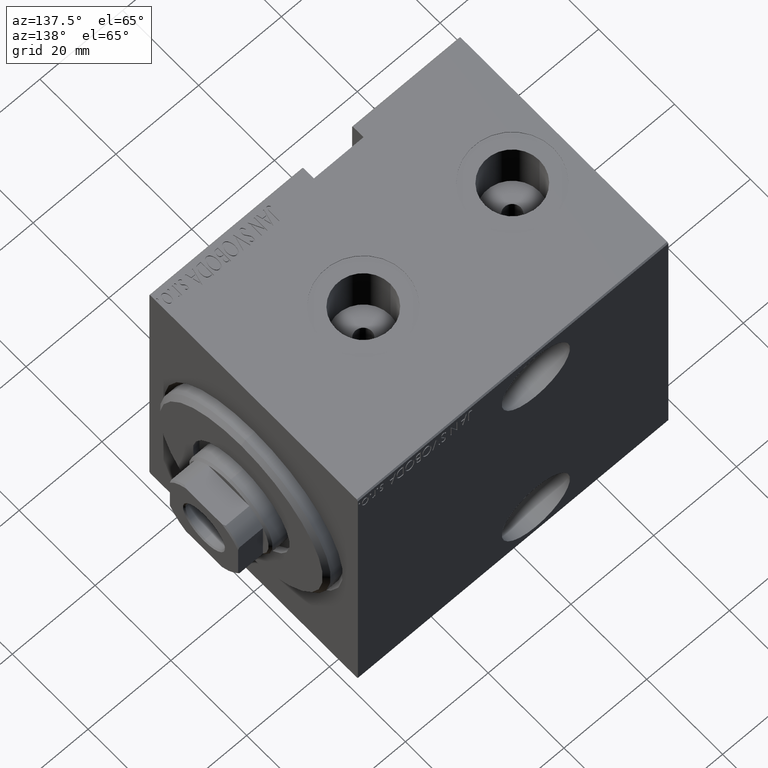
[diagram: clean part render]
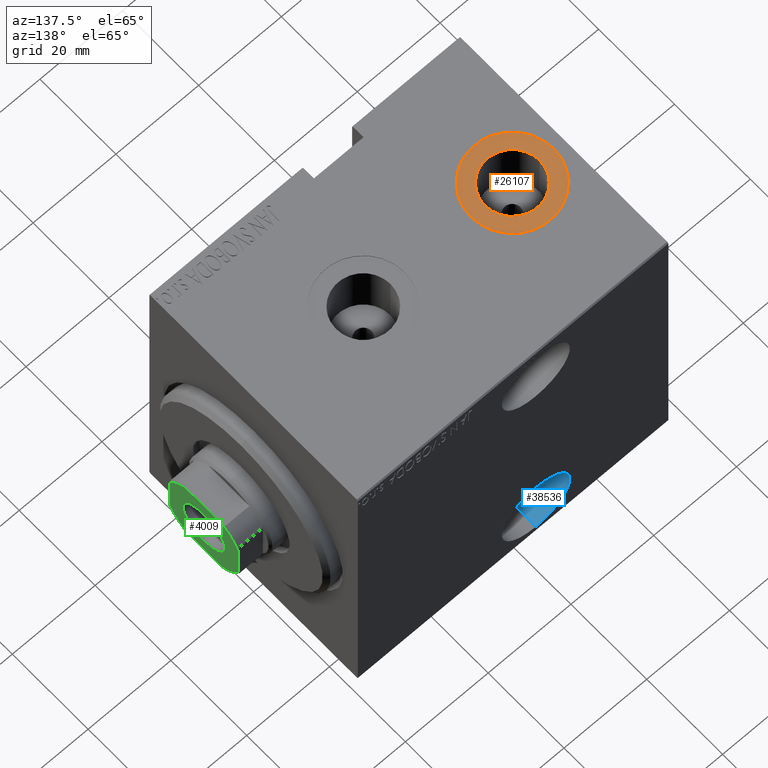
[diagram: same view with three faces highlighted in distinct colors, each labeled with its STEP entity id]
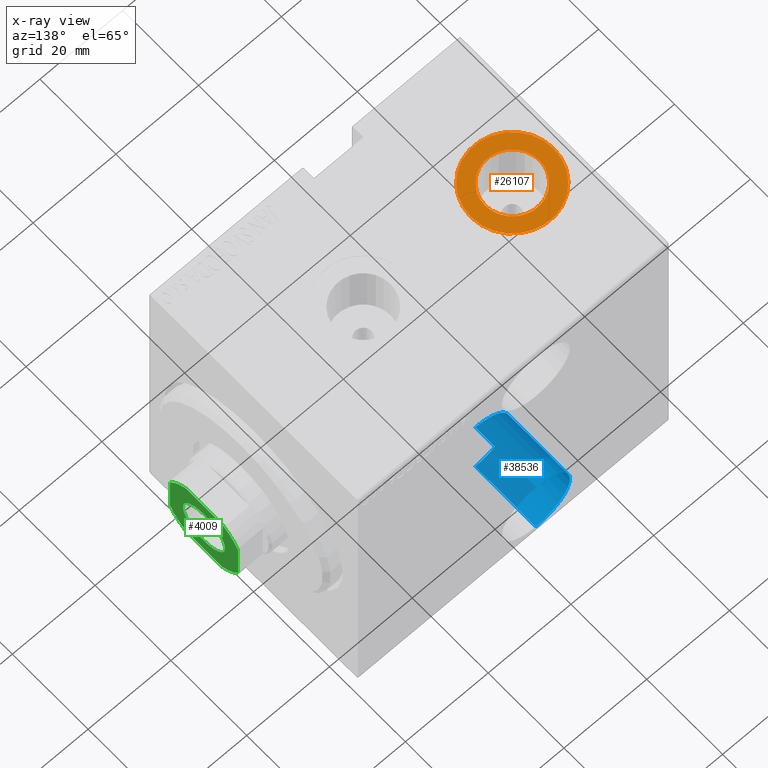
[diagram: x-ray of the same camera — body ghosted, the three highlighted faces saturated]
A machine part, auxiliary view with three faces highlighted in distinct colors.
The next image is the same camera in x-ray (body ghosted, the three faces saturated) — at least one of them is partly hidden behind the body in this view.
Their STEP definitions:

[orange] entity #26107 — the highlighted planar face has unit normal (0, 0, 1).
#331 = CARTESIAN_POINT ( 'NONE',  ( 55.91999999999998039, -8.656310456943625827E-15, 37.39999999999999858 ) ) ;
#748 = DIRECTION ( 'NONE',  ( 0.000000000000000000, 0.000000000000000000, 1.000000000000000000 ) ) ;
#1974 = FACE_BOUND ( 'NONE', #14079, .T. ) ;
#2192 = FACE_OUTER_BOUND ( 'NONE', #10960, .T. ) ;
#2625 = CARTESIAN_POINT ( 'NONE',  ( 62.49999999999999289, -9.462128050782584868E-15, 37.39999999999999858 ) ) ;
#3794 = AXIS2_PLACEMENT_3D ( 'NONE', #17675, #748, #14322 ) ;
#4496 = CIRCLE ( 'NONE', #3794, 10.00000000000000178 ) ;
#5734 = CARTESIAN_POINT ( 'NONE',  ( 62.49999999999999289, -9.462128050782584868E-15, 37.39999999999999858 ) ) ;
#6687 = CARTESIAN_POINT ( 'NONE',  ( 62.49999999999999289, -9.462128050782584868E-15, 37.39999999999999858 ) ) ;
#7647 = CARTESIAN_POINT ( 'NONE',  ( 52.49999999999999289, -8.237481251635231809E-15, 37.39999999999999858 ) ) ;
#10960 = EDGE_LOOP ( 'NONE', ( #20709, #43771 ) ) ;
#13283 = DIRECTION ( 'NONE',  ( 0.000000000000000000, 0.000000000000000000, 1.000000000000000000 ) ) ;
#13498 = VERTEX_POINT ( 'NONE', #16751 ) ;
#13503 = VERTEX_POINT ( 'NONE', #16321 ) ;
#13812 = EDGE_CURVE ( 'NONE', #27362, #13503, #18720, .T. ) ;
#14079 = EDGE_LOOP ( 'NONE', ( #32848, #24967 ) ) ;
#14322 = DIRECTION ( 'NONE',  ( 1.000000000000000000, 0.000000000000000000, 0.000000000000000000 ) ) ;
#15552 = PLANE ( 'NONE',  #38819 ) ;
#15600 = EDGE_CURVE ( 'NONE', #13498, #29986, #4496, .T. ) ;
#16321 = CARTESIAN_POINT ( 'NONE',  ( 69.07999999999999829, -9.462128050782584868E-15, 37.39999999999999858 ) ) ;
#16751 = CARTESIAN_POINT ( 'NONE',  ( 72.50000000000000000, -9.462128050782584868E-15, 37.39999999999999858 ) ) ;
#17675 = CARTESIAN_POINT ( 'NONE',  ( 62.49999999999999289, -9.462128050782584868E-15, 37.39999999999999858 ) ) ;
#18557 = EDGE_CURVE ( 'NONE', #29986, #13498, #20957, .T. ) ;
#18720 = CIRCLE ( 'NONE', #23678, 6.580000000000009841 ) ;
#19323 = DIRECTION ( 'NONE',  ( 1.000000000000000000, 0.000000000000000000, 0.000000000000000000 ) ) ;
#19334 = DIRECTION ( 'NONE',  ( 0.000000000000000000, 0.000000000000000000, 1.000000000000000000 ) ) ;
#19765 = DIRECTION ( 'NONE',  ( 1.000000000000000000, 0.000000000000000000, 0.000000000000000000 ) ) ;
#20709 = ORIENTED_EDGE ( 'NONE', *, *, #15600, .T. ) ;
#20957 = CIRCLE ( 'NONE', #33734, 10.00000000000000178 ) ;
#22957 = DIRECTION ( 'NONE',  ( 0.000000000000000000, 0.000000000000000000, 1.000000000000000000 ) ) ;
#23678 = AXIS2_PLACEMENT_3D ( 'NONE', #6687, #22957, #43810 ) ;
#24697 = CIRCLE ( 'NONE', #33192, 6.580000000000009841 ) ;
#24967 = ORIENTED_EDGE ( 'NONE', *, *, #13812, .F. ) ;
#26107 = ADVANCED_FACE ( 'NONE', ( #1974, #2192 ), #15552, .T. ) ;
#27362 = VERTEX_POINT ( 'NONE', #331 ) ;
#27782 = EDGE_CURVE ( 'NONE', #13503, #27362, #24697, .T. ) ;
#29986 = VERTEX_POINT ( 'NONE', #7647 ) ;
#32848 = ORIENTED_EDGE ( 'NONE', *, *, #27782, .F. ) ;
#33192 = AXIS2_PLACEMENT_3D ( 'NONE', #5734, #43081, #19323 ) ;
#33734 = AXIS2_PLACEMENT_3D ( 'NONE', #2625, #13283, #19765 ) ;
#36210 = CARTESIAN_POINT ( 'NONE',  ( 62.49999999999999289, -9.462128050782584868E-15, 37.39999999999999858 ) ) ;
#38819 = AXIS2_PLACEMENT_3D ( 'NONE', #36210, #19334, #43093 ) ;
#43081 = DIRECTION ( 'NONE',  ( 0.000000000000000000, 0.000000000000000000, 1.000000000000000000 ) ) ;
#43093 = DIRECTION ( 'NONE',  ( 1.000000000000000000, 0.000000000000000000, -0.000000000000000000 ) ) ;
#43771 = ORIENTED_EDGE ( 'NONE', *, *, #18557, .T. ) ;
#43810 = DIRECTION ( 'NONE',  ( 1.000000000000000000, 0.000000000000000000, 0.000000000000000000 ) ) ;

[blue] entity #38536 — the highlighted cylindrical surface (partial cylindrical patch) has radius 8.25 mm, axis along (0, 1, 0).
#1382 = DIRECTION ( 'NONE',  ( 0.000000000000000000, -1.000000000000000000, 1.963837897332234442E-16 ) ) ;
#1426 = CARTESIAN_POINT ( 'NONE',  ( 43.00000000000001421, -11.50000000000000711, -27.50000000000000355 ) ) ;
#1746 = VERTEX_POINT ( 'NONE', #7138 ) ;
#2660 = VECTOR ( 'NONE', #5427, 1000.000000000000000 ) ;
#4691 = ORIENTED_EDGE ( 'NONE', *, *, #11138, .F. ) ;
#4746 = ORIENTED_EDGE ( 'NONE', *, *, #41753, .T. ) ;
#4938 = CARTESIAN_POINT ( 'NONE',  ( 43.00000000000001421, -27.50000000000000711, -27.50000000000000000 ) ) ;
#5057 = CIRCLE ( 'NONE', #35591, 8.250000000000003553 ) ;
#5346 = VERTEX_POINT ( 'NONE', #31812 ) ;
#5427 = DIRECTION ( 'NONE',  ( -0.000000000000000000, -1.000000000000000000, 1.963837897332234442E-16 ) ) ;
#6331 = DIRECTION ( 'NONE',  ( -0.000000000000000000, -1.000000000000000000, 1.963837897332234442E-16 ) ) ;
#7138 = CARTESIAN_POINT ( 'NONE',  ( 43.00000000000001421, -11.50000000000000533, -19.25000000000000000 ) ) ;
#7652 = ORIENTED_EDGE ( 'NONE', *, *, #27431, .F. ) ;
#8324 = DIRECTION ( 'NONE',  ( 0.000000000000000000, -1.000000000000000000, 1.963837897332234442E-16 ) ) ;
#10565 = EDGE_LOOP ( 'NONE', ( #4691, #7652, #37892, #4746 ) ) ;
#11138 = EDGE_CURVE ( 'NONE', #1746, #33032, #16025, .T. ) ;
#12292 = CARTESIAN_POINT ( 'NONE',  ( 43.00000000000001421, -27.50000000000000711, -19.24999999999999645 ) ) ;
#14963 = DIRECTION ( 'NONE',  ( 0.000000000000000000, 0.000000000000000000, -1.000000000000000000 ) ) ;
#16025 = LINE ( 'NONE', #29610, #17917 ) ;
#17584 = AXIS2_PLACEMENT_3D ( 'NONE', #1426, #8324, #31449 ) ;
#17917 = VECTOR ( 'NONE', #43565, 1000.000000000000000 ) ;
#21850 = CIRCLE ( 'NONE', #17584, 8.250000000000000000 ) ;
#22817 = CYLINDRICAL_SURFACE ( 'NONE', #26266, 8.250000000000000000 ) ;
#23169 = LINE ( 'NONE', #26724, #2660 ) ;
#23467 = CARTESIAN_POINT ( 'NONE',  ( 43.00000000000001421, -11.50000000000000711, -27.50000000000000355 ) ) ;
#26266 = AXIS2_PLACEMENT_3D ( 'NONE', #23467, #6331, #36570 ) ;
#26724 = CARTESIAN_POINT ( 'NONE',  ( 43.00000000000001421, -11.50000000000000888, -35.75000000000000711 ) ) ;
#27431 = EDGE_CURVE ( 'NONE', #5346, #1746, #21850, .T. ) ;
#27638 = EDGE_CURVE ( 'NONE', #5346, #42521, #23169, .T. ) ;
#29610 = CARTESIAN_POINT ( 'NONE',  ( 43.00000000000001421, -11.50000000000000533, -19.25000000000000000 ) ) ;
#31449 = DIRECTION ( 'NONE',  ( 0.000000000000000000, -2.102695122396129916E-16, -1.000000000000000000 ) ) ;
#31812 = CARTESIAN_POINT ( 'NONE',  ( 43.00000000000001421, -11.50000000000000888, -35.75000000000000711 ) ) ;
#33032 = VERTEX_POINT ( 'NONE', #12292 ) ;
#35591 = AXIS2_PLACEMENT_3D ( 'NONE', #4938, #1382, #14963 ) ;
#36570 = DIRECTION ( 'NONE',  ( 0.000000000000000000, -2.102695122396129916E-16, -1.000000000000000000 ) ) ;
#37001 = FACE_OUTER_BOUND ( 'NONE', #10565, .T. ) ;
#37892 = ORIENTED_EDGE ( 'NONE', *, *, #27638, .T. ) ;
#38536 = ADVANCED_FACE ( 'NONE', ( #37001 ), #22817, .F. ) ;
#40416 = CARTESIAN_POINT ( 'NONE',  ( 43.00000000000001421, -27.50000000000000711, -35.75000000000000711 ) ) ;
#41753 = EDGE_CURVE ( 'NONE', #42521, #33032, #5057, .T. ) ;
#42521 = VERTEX_POINT ( 'NONE', #40416 ) ;
#43565 = DIRECTION ( 'NONE',  ( -0.000000000000000000, -1.000000000000000000, 1.963837897332234442E-16 ) ) ;

[green] entity #4009 — the highlighted planar face has unit normal (1, 0, -0).
#67 = AXIS2_PLACEMENT_3D ( 'NONE', #25482, #22144, #18799 ) ;
#150 = ORIENTED_EDGE ( 'NONE', *, *, #27296, .T. ) ;
#419 = DIRECTION ( 'NONE',  ( -0.000000000000000000, 0.000000000000000000, 1.000000000000000000 ) ) ;
#1522 = CARTESIAN_POINT ( 'NONE',  ( 0.000000000000000000, 0.000000000000000000, 77.00000000000001421 ) ) ;
#1582 = VECTOR ( 'NONE', #16184, 1000.000000000000000 ) ;
#2082 = EDGE_CURVE ( 'NONE', #34408, #14109, #32643, .T. ) ;
#2237 = CARTESIAN_POINT ( 'NONE',  ( 0.000000000000000000, 0.000000000000000000, 77.00000000000001421 ) ) ;
#2610 = CARTESIAN_POINT ( 'NONE',  ( -9.000000000000001776, 8.999999999999998224, 77.00000000000001421 ) ) ;
#3113 = CARTESIAN_POINT ( 'NONE',  ( 0.000000000000000000, 0.000000000000000000, 77.00000000000001421 ) ) ;
#4009 = ADVANCED_FACE ( 'NONE', ( #29041, #6084 ), #16114, .T. ) ;
#5062 = ORIENTED_EDGE ( 'NONE', *, *, #22382, .T. ) ;
#6012 = LINE ( 'NONE', #42928, #35216 ) ;
#6084 = FACE_OUTER_BOUND ( 'NONE', #18700, .T. ) ;
#7590 = VECTOR ( 'NONE', #29114, 1000.000000000000000 ) ;
#8053 = CARTESIAN_POINT ( 'NONE',  ( 8.999999999999998224, 4.800000000000010481, 77.00000000000001421 ) ) ;
#8376 = CARTESIAN_POINT ( 'NONE',  ( -4.799999999999990941, 8.999999999999998224, 77.00000000000001421 ) ) ;
#8410 = VERTEX_POINT ( 'NONE', #35079 ) ;
#8498 = EDGE_CURVE ( 'NONE', #8410, #36340, #43506, .T. ) ;
#8917 = DIRECTION ( 'NONE',  ( 1.000000000000000000, 0.000000000000000000, 0.000000000000000000 ) ) ;
#9079 = ORIENTED_EDGE ( 'NONE', *, *, #22433, .T. ) ;
#9662 = AXIS2_PLACEMENT_3D ( 'NONE', #3113, #29830, #33147 ) ;
#9760 = AXIS2_PLACEMENT_3D ( 'NONE', #15723, #12381, #26615 ) ;
#9791 = ORIENTED_EDGE ( 'NONE', *, *, #10539, .T. ) ;
#10052 = AXIS2_PLACEMENT_3D ( 'NONE', #2237, #15814, #26700 ) ;
#10539 = EDGE_CURVE ( 'NONE', #25387, #22842, #12918, .T. ) ;
#12350 = ORIENTED_EDGE ( 'NONE', *, *, #36610, .T. ) ;
#12381 = DIRECTION ( 'NONE',  ( -0.000000000000000000, 0.000000000000000000, 1.000000000000000000 ) ) ;
#12739 = CARTESIAN_POINT ( 'NONE',  ( 8.999999999999998224, 8.999999999999998224, 77.00000000000001421 ) ) ;
#12918 = CIRCLE ( 'NONE', #10052, 5.550000000000013145 ) ;
#14109 = VERTEX_POINT ( 'NONE', #33547 ) ;
#14275 = ORIENTED_EDGE ( 'NONE', *, *, #8498, .T. ) ;
#14547 = EDGE_CURVE ( 'NONE', #38246, #21002, #28395, .T. ) ;
#15156 = VECTOR ( 'NONE', #35263, 1000.000000000000000 ) ;
#15723 = CARTESIAN_POINT ( 'NONE',  ( 0.000000000000000000, 0.000000000000000000, 77.00000000000001421 ) ) ;
#15814 = DIRECTION ( 'NONE',  ( 0.000000000000000000, -0.000000000000000000, -1.000000000000000000 ) ) ;
#16114 = PLANE ( 'NONE',  #67 ) ;
#16184 = DIRECTION ( 'NONE',  ( -1.000000000000000000, -0.000000000000000000, -0.000000000000000000 ) ) ;
#18283 = CIRCLE ( 'NONE', #9760, 10.20000000000000462 ) ;
#18700 = EDGE_LOOP ( 'NONE', ( #43792, #19586, #14275, #12350, #20694, #5062, #9079, #150 ) ) ;
#18799 = DIRECTION ( 'NONE',  ( 1.000000000000000000, 0.000000000000000000, 0.000000000000000000 ) ) ;
#18932 = AXIS2_PLACEMENT_3D ( 'NONE', #1522, #41321, #41531 ) ;
#19586 = ORIENTED_EDGE ( 'NONE', *, *, #30494, .T. ) ;
#19647 = CIRCLE ( 'NONE', #18932, 5.550000000000013145 ) ;
#20694 = ORIENTED_EDGE ( 'NONE', *, *, #2082, .T. ) ;
#20900 = CARTESIAN_POINT ( 'NONE',  ( 0.000000000000000000, 0.000000000000000000, 77.00000000000001421 ) ) ;
#21002 = VERTEX_POINT ( 'NONE', #8053 ) ;
#21741 = CARTESIAN_POINT ( 'NONE',  ( 5.550000000000013145, 0.000000000000000000, 77.00000000000001421 ) ) ;
#22144 = DIRECTION ( 'NONE',  ( -0.000000000000000000, 0.000000000000000000, 1.000000000000000000 ) ) ;
#22222 = CARTESIAN_POINT ( 'NONE',  ( -9.000000000000001776, 8.999999999999998224, 77.00000000000001421 ) ) ;
#22278 = CARTESIAN_POINT ( 'NONE',  ( 9.000000000000001776, -4.800000000000007816, 77.00000000000001421 ) ) ;
#22382 = EDGE_CURVE ( 'NONE', #14109, #32976, #23194, .T. ) ;
#22433 = EDGE_CURVE ( 'NONE', #32976, #39522, #6012, .T. ) ;
#22842 = VERTEX_POINT ( 'NONE', #21741 ) ;
#23092 = CARTESIAN_POINT ( 'NONE',  ( 4.800000000000006928, -9.000000000000001776, 77.00000000000001421 ) ) ;
#23191 = CARTESIAN_POINT ( 'NONE',  ( -4.799999999999995381, -9.000000000000001776, 77.00000000000001421 ) ) ;
#23194 = CIRCLE ( 'NONE', #9662, 10.19999999999999929 ) ;
#23227 = DIRECTION ( 'NONE',  ( 1.000000000000000000, 0.000000000000000000, 0.000000000000000000 ) ) ;
#25375 = AXIS2_PLACEMENT_3D ( 'NONE', #20900, #419, #38190 ) ;
#25387 = VERTEX_POINT ( 'NONE', #38527 ) ;
#25482 = CARTESIAN_POINT ( 'NONE',  ( 0.000000000000000000, 0.000000000000000000, 77.00000000000001421 ) ) ;
#26348 = CARTESIAN_POINT ( 'NONE',  ( 0.000000000000000000, 0.000000000000000000, 77.00000000000001421 ) ) ;
#26615 = DIRECTION ( 'NONE',  ( 1.000000000000000000, 0.000000000000000000, 0.000000000000000000 ) ) ;
#26700 = DIRECTION ( 'NONE',  ( 1.000000000000000000, 0.000000000000000000, 0.000000000000000000 ) ) ;
#26760 = CIRCLE ( 'NONE', #25375, 10.20000000000000462 ) ;
#27296 = EDGE_CURVE ( 'NONE', #39522, #38246, #18283, .T. ) ;
#28395 = LINE ( 'NONE', #12739, #15156 ) ;
#28658 = EDGE_CURVE ( 'NONE', #22842, #25387, #19647, .T. ) ;
#29041 = FACE_BOUND ( 'NONE', #41326, .T. ) ;
#29114 = DIRECTION ( 'NONE',  ( 1.927470528863119049E-16, -1.000000000000000000, 0.000000000000000000 ) ) ;
#29830 = DIRECTION ( 'NONE',  ( -0.000000000000000000, 0.000000000000000000, 1.000000000000000000 ) ) ;
#30494 = EDGE_CURVE ( 'NONE', #21002, #8410, #26760, .T. ) ;
#32623 = CIRCLE ( 'NONE', #41096, 10.19999999999999396 ) ;
#32643 = LINE ( 'NONE', #22222, #7590 ) ;
#32976 = VERTEX_POINT ( 'NONE', #23191 ) ;
#33147 = DIRECTION ( 'NONE',  ( 1.000000000000000000, 0.000000000000000000, 0.000000000000000000 ) ) ;
#33547 = CARTESIAN_POINT ( 'NONE',  ( -8.999999999999998224, -4.799999999999999822, 77.00000000000001421 ) ) ;
#34408 = VERTEX_POINT ( 'NONE', #38799 ) ;
#35079 = CARTESIAN_POINT ( 'NONE',  ( 4.800000000000012257, 8.999999999999998224, 77.00000000000001421 ) ) ;
#35216 = VECTOR ( 'NONE', #8917, 1000.000000000000000 ) ;
#35263 = DIRECTION ( 'NONE',  ( -1.927470528863119049E-16, 1.000000000000000000, -0.000000000000000000 ) ) ;
#36340 = VERTEX_POINT ( 'NONE', #8376 ) ;
#36610 = EDGE_CURVE ( 'NONE', #36340, #34408, #32623, .T. ) ;
#37924 = ORIENTED_EDGE ( 'NONE', *, *, #28658, .T. ) ;
#38190 = DIRECTION ( 'NONE',  ( 1.000000000000000000, 0.000000000000000000, 0.000000000000000000 ) ) ;
#38246 = VERTEX_POINT ( 'NONE', #22278 ) ;
#38527 = CARTESIAN_POINT ( 'NONE',  ( -5.550000000000013145, 6.796789735267826558E-16, 77.00000000000001421 ) ) ;
#38799 = CARTESIAN_POINT ( 'NONE',  ( -9.000000000000001776, 4.799999999999986500, 77.00000000000001421 ) ) ;
#39522 = VERTEX_POINT ( 'NONE', #23092 ) ;
#41096 = AXIS2_PLACEMENT_3D ( 'NONE', #26348, #42784, #23227 ) ;
#41321 = DIRECTION ( 'NONE',  ( 0.000000000000000000, -0.000000000000000000, -1.000000000000000000 ) ) ;
#41326 = EDGE_LOOP ( 'NONE', ( #37924, #9791 ) ) ;
#41531 = DIRECTION ( 'NONE',  ( 1.000000000000000000, 0.000000000000000000, 0.000000000000000000 ) ) ;
#42784 = DIRECTION ( 'NONE',  ( -0.000000000000000000, 0.000000000000000000, 1.000000000000000000 ) ) ;
#42928 = CARTESIAN_POINT ( 'NONE',  ( -8.999999999999998224, -9.000000000000001776, 77.00000000000001421 ) ) ;
#43506 = LINE ( 'NONE', #2610, #1582 ) ;
#43792 = ORIENTED_EDGE ( 'NONE', *, *, #14547, .T. ) ;